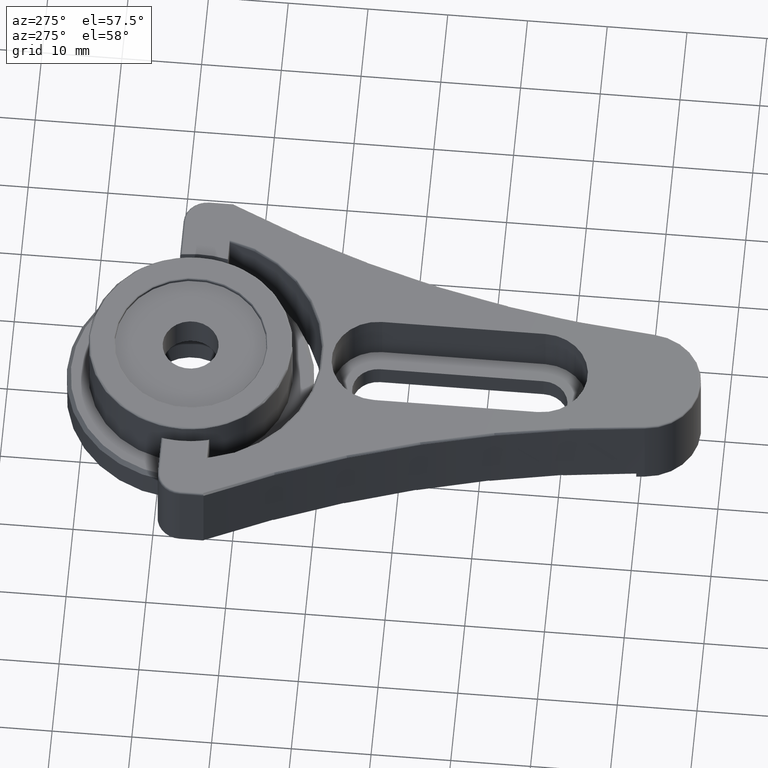
[diagram: clean part render]
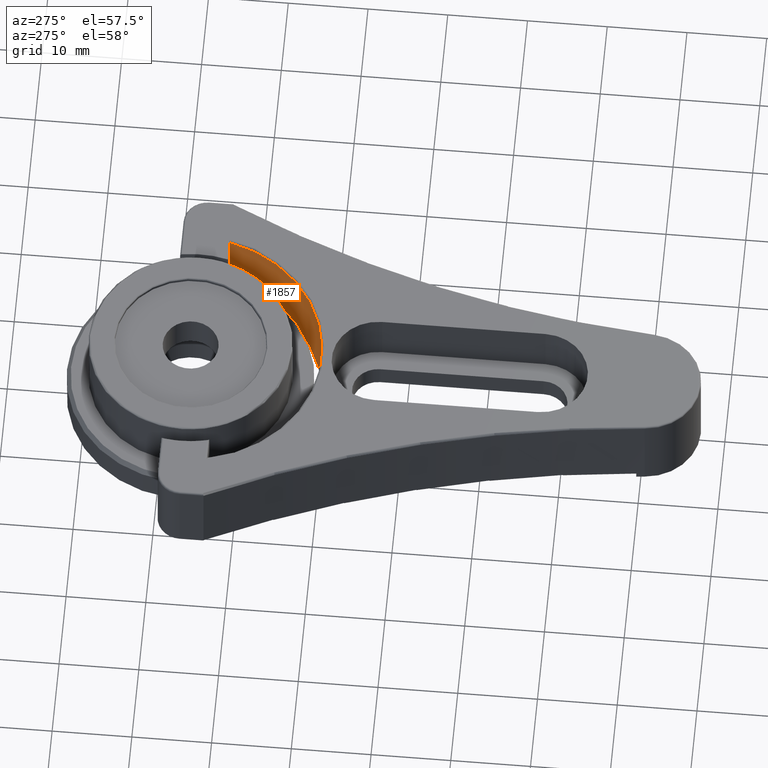
[diagram: same view with one face highlighted and labeled with its STEP entity id]
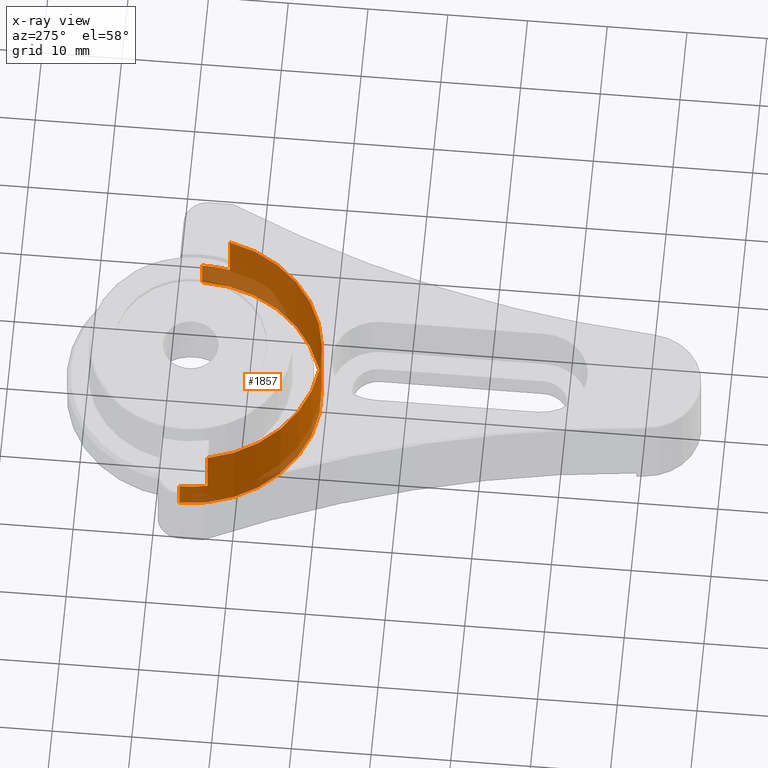
[diagram: x-ray of the same camera — body ghosted, the highlighted face saturated]
A machine part, auxiliary view. The second image highlights one B-rep face of the part: STEP entity #1857.
The next image is the same camera in x-ray: the body ghosted, the highlighted face saturated — about 21% of this face is hidden behind the body in this view.
In plain terms, the highlighted cylindrical surface (partial cylindrical patch) has radius 16.4 mm, axis along (-0, -0, -1).
Its self-contained STEP definition (entity closure, byte-faithful):
#44 = DIRECTION ( 'NONE',  ( -0.0000000000000000000, -0.0000000000000000000, -1.000000000000000000 ) ) ;
#56 = VECTOR ( 'NONE', #636, 1000.000000000000000 ) ;
#69 = VERTEX_POINT ( 'NONE', #2070 ) ;
#74 = VERTEX_POINT ( 'NONE', #363 ) ;
#133 = AXIS2_PLACEMENT_3D ( 'NONE', #2501, #764, #2691 ) ;
#209 = ORIENTED_EDGE ( 'NONE', *, *, #2651, .F. ) ;
#267 = VERTEX_POINT ( 'NONE', #870 ) ;
#310 = DIRECTION ( 'NONE',  ( -0.0000000000000000000, 0.0000000000000000000, 1.000000000000000000 ) ) ;
#320 = CIRCLE ( 'NONE', #133, 16.40000000000922500 ) ;
#336 = LINE ( 'NONE', #641, #2068 ) ;
#341 = VERTEX_POINT ( 'NONE', #2726 ) ;
#363 = CARTESIAN_POINT ( 'NONE',  ( -16.02217213739431400, 53.49999999999991500, 10.55000000000000100 ) ) ;
#372 = CARTESIAN_POINT ( 'NONE',  ( -16.40000000000933900, 57.00000000000057600, 4.099999999999999600 ) ) ;
#406 = CARTESIAN_POINT ( 'NONE',  ( 16.39999999999089300, 57.00000000000057600, 10.80000000000000100 ) ) ;
#418 = CARTESIAN_POINT ( 'NONE',  ( -16.02217213739431400, 53.49999999999991500, 10.80000000000000100 ) ) ;
#466 = CARTESIAN_POINT ( 'NONE',  ( 16.02217213737586800, 53.49999999999991500, 10.80000000000000100 ) ) ;
#507 = VERTEX_POINT ( 'NONE', #372 ) ;
#524 = VECTOR ( 'NONE', #1915, 1000.000000000000000 ) ;
#532 = FACE_OUTER_BOUND ( 'NONE', #2600, .T. ) ;
#553 = DIRECTION ( 'NONE',  ( -0.0000000000000000000, -0.0000000000000000000, -1.000000000000000000 ) ) ;
#636 = DIRECTION ( 'NONE',  ( -0.0000000000000000000, -0.0000000000000000000, -1.000000000000000000 ) ) ;
#641 = CARTESIAN_POINT ( 'NONE',  ( -16.40000000000933900, 57.00000000000057600, 10.80000000000000100 ) ) ;
#653 = DIRECTION ( 'NONE',  ( -0.0000000000000000000, -0.0000000000000000000, -1.000000000000000000 ) ) ;
#725 = AXIS2_PLACEMENT_3D ( 'NONE', #2620, #2775, #1329 ) ;
#744 = ORIENTED_EDGE ( 'NONE', *, *, #2757, .T. ) ;
#764 = DIRECTION ( 'NONE',  ( 0.0000000000000000000, 0.0000000000000000000, 1.000000000000000000 ) ) ;
#825 = EDGE_CURVE ( 'NONE', #507, #267, #336, .T. ) ;
#870 = CARTESIAN_POINT ( 'NONE',  ( -16.40000000000933900, 57.00000000000057600, 0.2500000000000002200 ) ) ;
#966 = ORIENTED_EDGE ( 'NONE', *, *, #2435, .T. ) ;
#987 = VECTOR ( 'NONE', #44, 1000.000000000000000 ) ;
#997 = CARTESIAN_POINT ( 'NONE',  ( -9.222417756143833600E-012, 57.00000000000057600, 0.2500000000000002200 ) ) ;
#1069 = CARTESIAN_POINT ( 'NONE',  ( 16.40000000000000600, 57.00000000000057600, 4.099999999999999600 ) ) ;
#1131 = EDGE_CURVE ( 'NONE', #341, #2689, #2693, .T. ) ;
#1209 = CARTESIAN_POINT ( 'NONE',  ( -9.222417756143833600E-012, 57.00000000000057600, 10.80000000000000100 ) ) ;
#1329 = DIRECTION ( 'NONE',  ( 1.000000000000000000, 0.0000000000000000000, 0.0000000000000000000 ) ) ;
#1379 = CYLINDRICAL_SURFACE ( 'NONE', #2642, 16.40000000000011600 ) ;
#1380 = CIRCLE ( 'NONE', #725, 16.40000000000011600 ) ;
#1480 = ORIENTED_EDGE ( 'NONE', *, *, #1131, .T. ) ;
#1550 = VERTEX_POINT ( 'NONE', #1069 ) ;
#1578 = DIRECTION ( 'NONE',  ( 1.000000000000000000, 0.0000000000000000000, 0.0000000000000000000 ) ) ;
#1641 = DIRECTION ( 'NONE',  ( 1.000000000000000000, 0.0000000000000000000, 0.0000000000000000000 ) ) ;
#1669 = CIRCLE ( 'NONE', #1877, 16.40000000000011600 ) ;
#1682 = EDGE_CURVE ( 'NONE', #1550, #69, #2203, .T. ) ;
#1683 = AXIS2_PLACEMENT_3D ( 'NONE', #997, #1870, #1641 ) ;
#1715 = ORIENTED_EDGE ( 'NONE', *, *, #825, .F. ) ;
#1821 = CARTESIAN_POINT ( 'NONE',  ( -9.222417756143833600E-012, 57.00000000000057600, 10.55000000000000100 ) ) ;
#1822 = EDGE_CURVE ( 'NONE', #69, #267, #2021, .T. ) ;
#1857 = ADVANCED_FACE ( 'NONE', ( #532 ), #1379, .F. ) ;
#1862 = ORIENTED_EDGE ( 'NONE', *, *, #1822, .T. ) ;
#1870 = DIRECTION ( 'NONE',  ( 0.0000000000000000000, -0.0000000000000000000, -1.000000000000000000 ) ) ;
#1877 = AXIS2_PLACEMENT_3D ( 'NONE', #1821, #310, #1578 ) ;
#1915 = DIRECTION ( 'NONE',  ( -0.0000000000000000000, -0.0000000000000000000, -1.000000000000000000 ) ) ;
#1931 = CARTESIAN_POINT ( 'NONE',  ( 16.02217213737586800, 53.49999999999991500, 4.099999999999999600 ) ) ;
#2021 = CIRCLE ( 'NONE', #1683, 16.40000000000011600 ) ;
#2025 = EDGE_CURVE ( 'NONE', #507, #2049, #1380, .T. ) ;
#2049 = VERTEX_POINT ( 'NONE', #2163 ) ;
#2064 = DIRECTION ( 'NONE',  ( -1.000000000000000000, 0.0000000000000000000, 0.0000000000000000000 ) ) ;
#2068 = VECTOR ( 'NONE', #653, 1000.000000000000000 ) ;
#2070 = CARTESIAN_POINT ( 'NONE',  ( 16.39999999999089300, 57.00000000000057600, 0.2500000000000002200 ) ) ;
#2144 = ORIENTED_EDGE ( 'NONE', *, *, #1682, .T. ) ;
#2163 = CARTESIAN_POINT ( 'NONE',  ( -16.02217213739431400, 53.49999999999991500, 4.099999999999999600 ) ) ;
#2203 = LINE ( 'NONE', #406, #56 ) ;
#2435 = EDGE_CURVE ( 'NONE', #2689, #1550, #320, .T. ) ;
#2501 = CARTESIAN_POINT ( 'NONE',  ( -9.222417756143833600E-012, 57.00000000000057600, 4.099999999999999600 ) ) ;
#2507 = LINE ( 'NONE', #418, #524 ) ;
#2600 = EDGE_LOOP ( 'NONE', ( #966, #2144, #1862, #1715, #2714, #209, #744, #1480 ) ) ;
#2620 = CARTESIAN_POINT ( 'NONE',  ( -9.222417756143833600E-012, 57.00000000000057600, 4.099999999999999600 ) ) ;
#2642 = AXIS2_PLACEMENT_3D ( 'NONE', #1209, #553, #2064 ) ;
#2651 = EDGE_CURVE ( 'NONE', #74, #2049, #2507, .T. ) ;
#2689 = VERTEX_POINT ( 'NONE', #1931 ) ;
#2691 = DIRECTION ( 'NONE',  ( -1.000000000000000000, 0.0000000000000000000, 0.0000000000000000000 ) ) ;
#2693 = LINE ( 'NONE', #466, #987 ) ;
#2714 = ORIENTED_EDGE ( 'NONE', *, *, #2025, .T. ) ;
#2726 = CARTESIAN_POINT ( 'NONE',  ( 16.02217213737586800, 53.49999999999991500, 10.55000000000000100 ) ) ;
#2757 = EDGE_CURVE ( 'NONE', #74, #341, #1669, .T. ) ;
#2775 = DIRECTION ( 'NONE',  ( 0.0000000000000000000, 0.0000000000000000000, 1.000000000000000000 ) ) ;